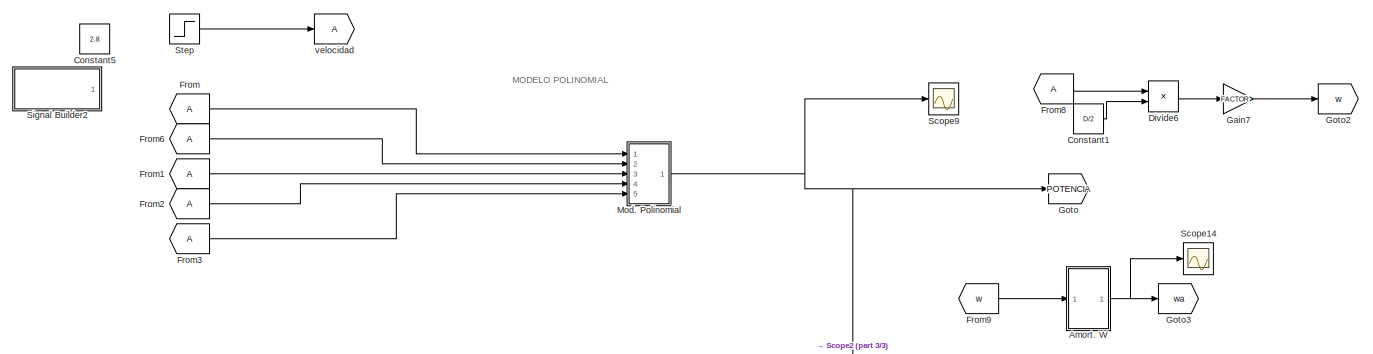
[diagram: root canvas - part 1/3, top center region]
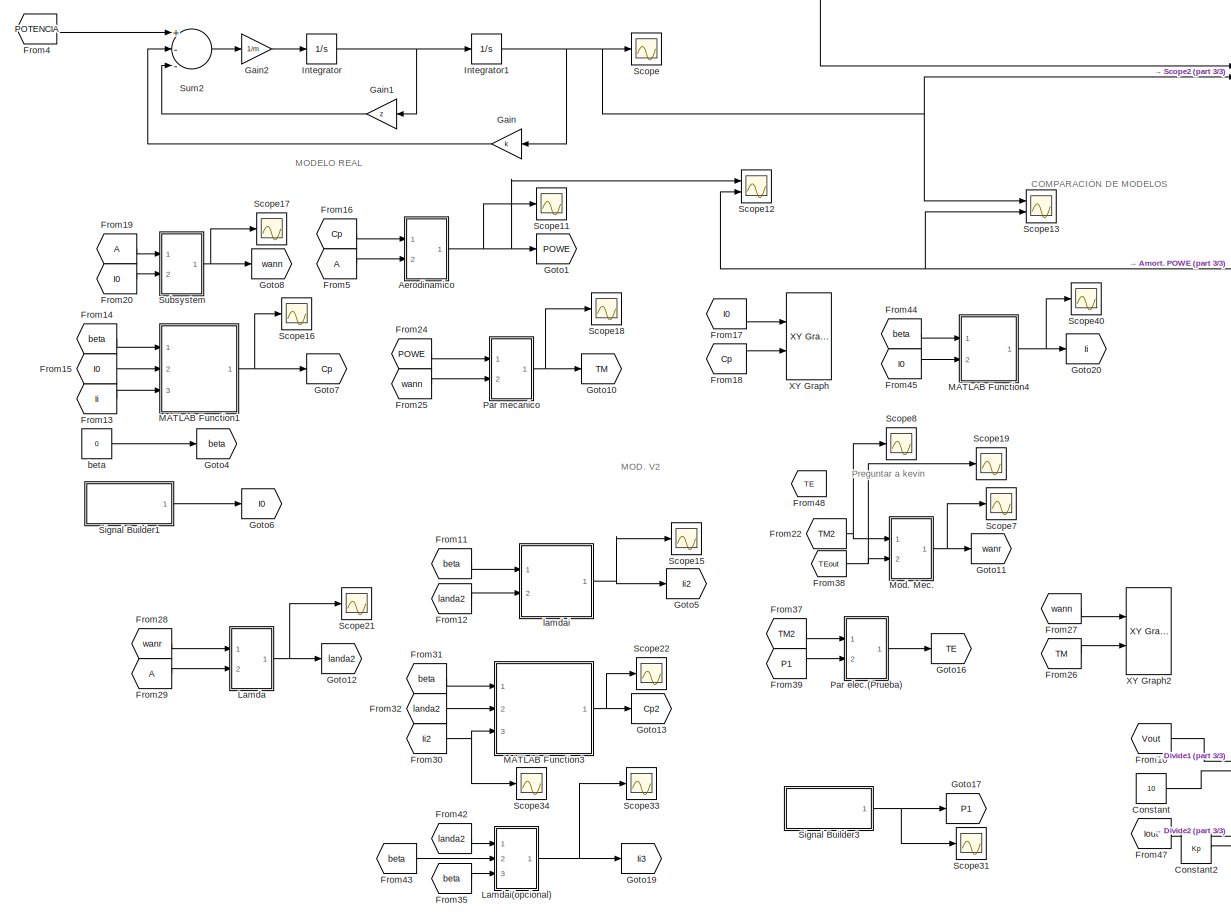
[diagram: root canvas - part 2/3, middle left region]
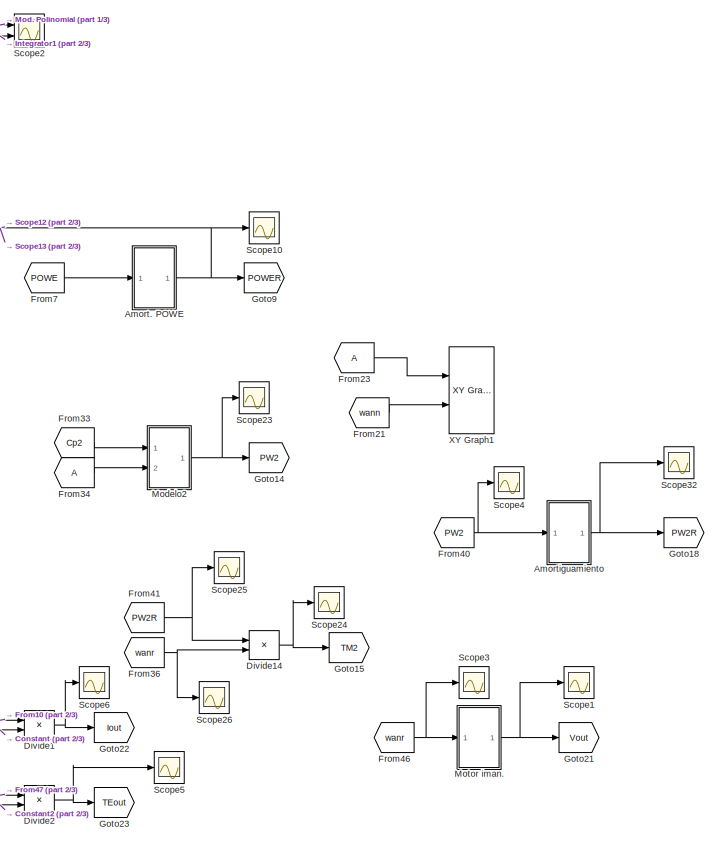
[diagram: root canvas - part 3/3, middle right region]
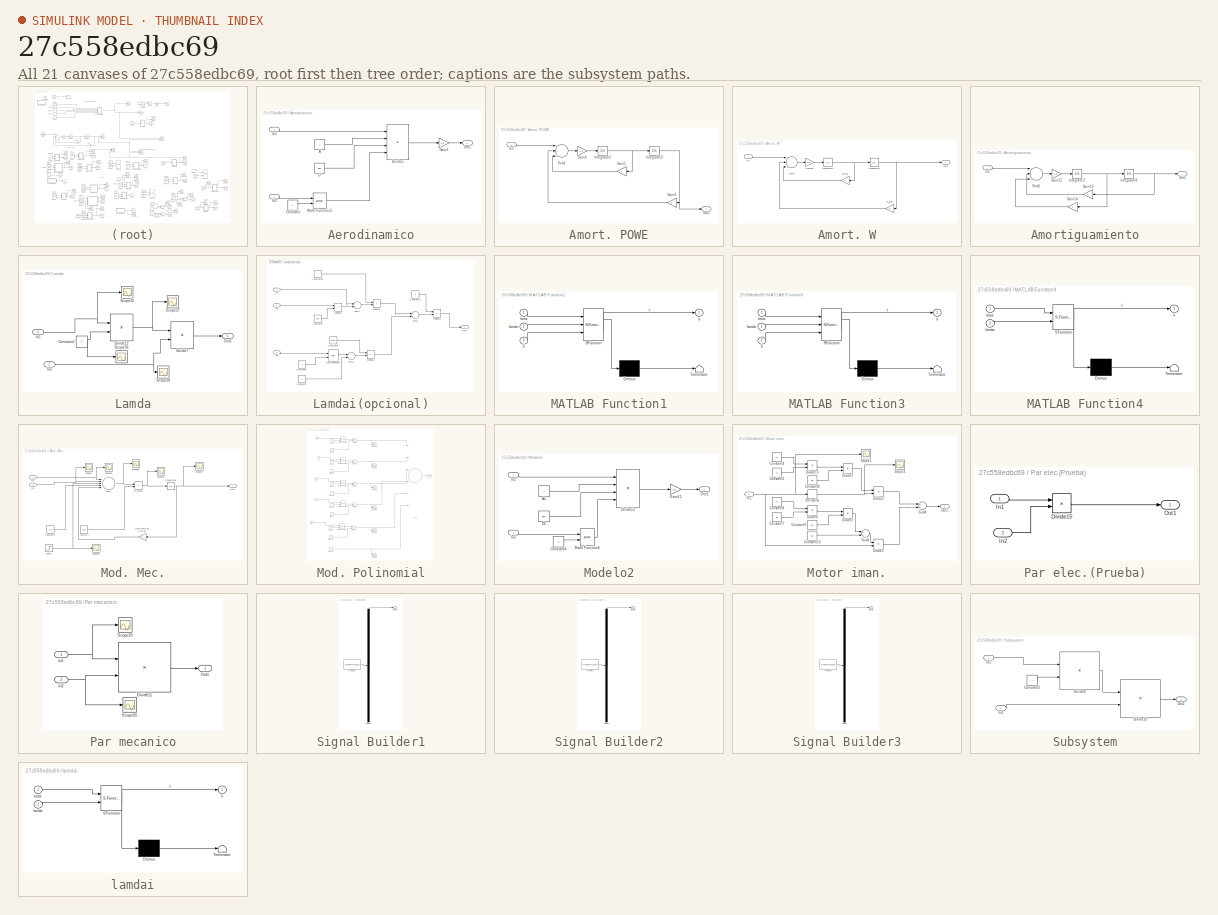
[diagram: thumbnail index - all 21 canvases of the model, root first then tree order]
MODEL slx_27c558edbc69
KIND model
CONFIG AbsTol = auto
CONFIG EnableMultiTasking = off
CONFIG FixedStep = 50e-3
CONFIG MaxStep = auto
CONFIG MinStep = auto
CONFIG RelTol = 1e-3
CONFIG SampleTimeConstraint = Unconstrained
CONFIG Solver = FixedStepAuto
CONFIG SolverName = FixedStepAuto
CONFIG StartTime = 0.0
CONFIG StopTime = 500
BLOCK [SubSystem] Aerodinamico
  Ports = [2, 1]
  RequestExecContextInheritance = off
  Variant = off
BLOCK [Constant] Aerodinamico/A
  Value = A
BLOCK [Constant] Aerodinamico/Constant
  Value = 3
BLOCK [Constant] Aerodinamico/D
  Value = den
BLOCK [Product] Aerodinamico/Divide5
  InputSameDT = off
  Inputs = ****
  OutDataTypeStr = Inherit: Inherit via internal rule
  Ports = [4, 1]
BLOCK [Gain] Aerodinamico/Gain3
  Gain = 0.5
  OutDataTypeStr = Inherit: Inherit via internal rule
  ParamDataTypeStr = Inherit: Inherit via internal rule
  SaturateOnIntegerOverflow = off
BLOCK [Inport] Aerodinamico/In1
  IconDisplay = Port number
BLOCK [Inport] Aerodinamico/In2
  IconDisplay = Port number
  Port = 2
BLOCK [Math] Aerodinamico/Math Function5
  Operator = pow
  Ports = [2, 1]
BLOCK [Outport] Aerodinamico/Out1
  IconDisplay = Port number
BLOCK [SubSystem] Amort. POWE
  Ports = [1, 1]
  RequestExecContextInheritance = off
  Variant = off
BLOCK [Gain] Amort. POWE/Gain4
  Gain = k
  OutDataTypeStr = Inherit: Inherit via internal rule
  ParamDataTypeStr = Inherit: Inherit via internal rule
  SaturateOnIntegerOverflow = off
BLOCK [Gain] Amort. POWE/Gain5
  Gain = z
  OutDataTypeStr = Inherit: Inherit via internal rule
  ParamDataTypeStr = Inherit: Inherit via internal rule
  SaturateOnIntegerOverflow = off
BLOCK [Gain] Amort. POWE/Gain6
  Gain = 1/m
  OutDataTypeStr = Inherit: Inherit via internal rule
  ParamDataTypeStr = Inherit: Inherit via internal rule
  SaturateOnIntegerOverflow = off
BLOCK [Inport] Amort. POWE/In1
  IconDisplay = Port number
BLOCK [Integrator] Amort. POWE/Integrator2
  Ports = [1, 1]
BLOCK [Integrator] Amort. POWE/Integrator3
  Ports = [1, 1]
BLOCK [Outport] Amort. POWE/Out1
  IconDisplay = Port number
BLOCK [Sum] Amort. POWE/Sum1
  InputSameDT = off
  Inputs = +--
  OutDataTypeStr = Inherit: Inherit via internal rule
  Ports = [3, 1]
  SaturateOnIntegerOverflow = off
BLOCK [SubSystem] Amort. W
  Ports = [1, 1]
  RequestExecContextInheritance = off
  Variant = off
BLOCK [Gain] Amort. W/Gain10
  Gain = 1/m
  OutDataTypeStr = Inherit: Inherit via internal rule
  ParamDataTypeStr = Inherit: Inherit via internal rule
  SaturateOnIntegerOverflow = off
BLOCK [Gain] Amort. W/Gain8
  Gain = k
  OutDataTypeStr = Inherit: Inherit via internal rule
  ParamDataTypeStr = Inherit: Inherit via internal rule
  SaturateOnIntegerOverflow = off
BLOCK [Gain] Amort. W/Gain9
  Gain = z
  OutDataTypeStr = Inherit: Inherit via internal rule
  ParamDataTypeStr = Inherit: Inherit via internal rule
  SaturateOnIntegerOverflow = off
BLOCK [Inport] Amort. W/In1
  IconDisplay = Port number
BLOCK [Integrator] Amort. W/Integrator4
  Ports = [1, 1]
BLOCK [Integrator] Amort. W/Integrator5
  Ports = [1, 1]
BLOCK [Outport] Amort. W/Out1
  IconDisplay = Port number
BLOCK [Sum] Amort. W/Sum3
  InputSameDT = off
  Inputs = +--
  OutDataTypeStr = Inherit: Inherit via internal rule
  Ports = [3, 1]
  SaturateOnIntegerOverflow = off
BLOCK [SubSystem] Amortiguamiento
  Ports = [1, 1]
  RequestExecContextInheritance = off
  Variant = off
BLOCK [Gain] Amortiguamiento/Gain12
  Gain = 1/m
  OutDataTypeStr = Inherit: Inherit via internal rule
  ParamDataTypeStr = Inherit: Inherit via internal rule
  SaturateOnIntegerOverflow = off
BLOCK [Gain] Amortiguamiento/Gain13
  Gain = k
  OutDataTypeStr = Inherit: Inherit via internal rule
  ParamDataTypeStr = Inherit: Inherit via internal rule
  SaturateOnIntegerOverflow = off
BLOCK [Gain] Amortiguamiento/Gain14
  Gain = z
  OutDataTypeStr = Inherit: Inherit via internal rule
  ParamDataTypeStr = Inherit: Inherit via internal rule
  SaturateOnIntegerOverflow = off
BLOCK [Inport] Amortiguamiento/In1
  IconDisplay = Port number
BLOCK [Integrator] Amortiguamiento/Integrator7
  Ports = [1, 1]
BLOCK [Integrator] Amortiguamiento/Integrator8
  Ports = [1, 1]
BLOCK [Outport] Amortiguamiento/Out1
  IconDisplay = Port number
BLOCK [Sum] Amortiguamiento/Sum5
  InputSameDT = off
  Inputs = +--
  OutDataTypeStr = Inherit: Inherit via internal rule
  Ports = [3, 1]
  SaturateOnIntegerOverflow = off
BLOCK [Constant] Constant
  Value = 10
BLOCK [Constant] Constant1
  Value = D/2
BLOCK [Constant] Constant2
  Value = Kp
BLOCK [Constant] Constant5
  Value = 2.8
BLOCK [Product] Divide1
  InputSameDT = off
  Inputs = */
  OutDataTypeStr = Inherit: Inherit via internal rule
  Ports = [2, 1]
  RndMeth = Floor
  SaturateOnIntegerOverflow = off
BLOCK [Product] Divide14
  InputSameDT = off
  Inputs = */
  OutDataTypeStr = Inherit: Inherit via internal rule
  Ports = [2, 1]
  RndMeth = Floor
  SaturateOnIntegerOverflow = off
BLOCK [Product] Divide2
  InputSameDT = off
  Inputs = **
  OutDataTypeStr = Inherit: Inherit via internal rule
  Ports = [2, 1]
  RndMeth = Floor
  SaturateOnIntegerOverflow = off
BLOCK [Product] Divide6
  InputSameDT = off
  Inputs = */
  OutDataTypeStr = Inherit: Inherit via internal rule
  Ports = [2, 1]
  RndMeth = Floor
  SaturateOnIntegerOverflow = off
BLOCK [From] From
BLOCK [From] From1
BLOCK [From] From10
  GotoTag = Vout
BLOCK [From] From11
  GotoTag = beta
BLOCK [From] From12
  GotoTag = landa2
BLOCK [From] From13
  GotoTag = Ii
BLOCK [From] From14
  GotoTag = beta
BLOCK [From] From15
  GotoTag = I0
BLOCK [From] From16
  GotoTag = Cp
BLOCK [From] From17
  GotoTag = I0
BLOCK [From] From18
  GotoTag = Cp
BLOCK [From] From19
BLOCK [From] From2
BLOCK [From] From20
  GotoTag = I0
BLOCK [From] From21
  GotoTag = wann
BLOCK [From] From22
  GotoTag = TM2
BLOCK [From] From23
BLOCK [From] From24
  GotoTag = POWE
BLOCK [From] From25
  GotoTag = wann
BLOCK [From] From26
  GotoTag = TM
BLOCK [From] From27
  GotoTag = wann
BLOCK [From] From28
  GotoTag = wanr
BLOCK [From] From29
BLOCK [From] From3
BLOCK [From] From30
  GotoTag = Ii2
BLOCK [From] From31
  GotoTag = beta
BLOCK [From] From32
  GotoTag = landa2
BLOCK [From] From33
  GotoTag = Cp2
BLOCK [From] From34
BLOCK [From] From35
  GotoTag = beta
BLOCK [From] From36
  GotoTag = wanr
BLOCK [From] From37
  GotoTag = TM2
BLOCK [From] From38
  GotoTag = TEout
BLOCK [From] From39
  GotoTag = P1
BLOCK [From] From4
  GotoTag = POTENCIA
BLOCK [From] From40
  GotoTag = PW2
BLOCK [From] From41
  GotoTag = PW2R
BLOCK [From] From42
  GotoTag = landa2
BLOCK [From] From43
  GotoTag = beta
BLOCK [From] From44
  GotoTag = beta
BLOCK [From] From45
  GotoTag = I0
BLOCK [From] From46
  GotoTag = wanr
BLOCK [From] From47
  GotoTag = Iout
BLOCK [From] From48
  GotoTag = TE
BLOCK [From] From5
BLOCK [From] From6
BLOCK [From] From7
  GotoTag = POWE
BLOCK [From] From8
BLOCK [From] From9
  GotoTag = w
BLOCK [Gain] Gain
  Gain = k
  OutDataTypeStr = Inherit: Inherit via internal rule
  ParamDataTypeStr = Inherit: Inherit via internal rule
  SaturateOnIntegerOverflow = off
BLOCK [Gain] Gain1
  Gain = z
  OutDataTypeStr = Inherit: Inherit via internal rule
  ParamDataTypeStr = Inherit: Inherit via internal rule
  SaturateOnIntegerOverflow = off
BLOCK [Gain] Gain2
  Gain = 1/m
  OutDataTypeStr = Inherit: Inherit via internal rule
  ParamDataTypeStr = Inherit: Inherit via internal rule
  SaturateOnIntegerOverflow = off
BLOCK [Gain] Gain7
  Gain = FACTOR
  OutDataTypeStr = Inherit: Inherit via internal rule
  ParamDataTypeStr = Inherit: Inherit via internal rule
  SaturateOnIntegerOverflow = off
BLOCK [Goto] Goto
  GotoTag = POTENCIA
BLOCK [Goto] Goto1
  GotoTag = POWE
BLOCK [Goto] Goto10
  GotoTag = TM
BLOCK [Goto] Goto11
  GotoTag = wanr
BLOCK [Goto] Goto12
  GotoTag = landa2
BLOCK [Goto] Goto13
  GotoTag = Cp2
BLOCK [Goto] Goto14
  GotoTag = PW2
BLOCK [Goto] Goto15
  GotoTag = TM2
BLOCK [Goto] Goto16
  GotoTag = TE
BLOCK [Goto] Goto17
  GotoTag = P1
BLOCK [Goto] Goto18
  GotoTag = PW2R
BLOCK [Goto] Goto19
  GotoTag = Ii3
BLOCK [Goto] Goto2
  GotoTag = w
BLOCK [Goto] Goto20
  GotoTag = Ii
BLOCK [Goto] Goto21
  GotoTag = Vout
BLOCK [Goto] Goto22
  GotoTag = Iout
BLOCK [Goto] Goto23
  GotoTag = TEout
BLOCK [Goto] Goto3
  GotoTag = wa
BLOCK [Goto] Goto4
  GotoTag = beta
BLOCK [Goto] Goto5
  GotoTag = Ii2
BLOCK [Goto] Goto6
  GotoTag = I0
BLOCK [Goto] Goto7
  GotoTag = Cp
BLOCK [Goto] Goto8
  GotoTag = wann
BLOCK [Goto] Goto9
  GotoTag = POWER
BLOCK [Integrator] Integrator
  Ports = [1, 1]
BLOCK [Integrator] Integrator1
  Ports = [1, 1]
BLOCK [SubSystem] Lamda
  Ports = [2, 1]
  RequestExecContextInheritance = off
  Variant = off
BLOCK [Constant] Lamda/Constant4
  Value = r
BLOCK [Product] Lamda/Divide12
  InputSameDT = off
  Inputs = **
  OutDataTypeStr = Inherit: Inherit via internal rule
  Ports = [2, 1]
  RndMeth = Floor
  SaturateOnIntegerOverflow = off
BLOCK [Product] Lamda/Divide7
  InputSameDT = off
  Inputs = */
  OutDataTypeStr = Inherit: Inherit via internal rule
  Ports = [2, 1]
  RndMeth = Floor
  SaturateOnIntegerOverflow = off
BLOCK [Inport] Lamda/In1
  IconDisplay = Port number
BLOCK [Inport] Lamda/In2
  IconDisplay = Port number
  Port = 2
BLOCK [Outport] Lamda/Out1
  IconDisplay = Port number
BLOCK [Scope] Lamda/Scope35
  NumInputPorts = 1
  Ports = [1]
  ScopeSpecificationString = Simulink.scopes.TimeScopeBlockCfg('CurrentConfiguration', extmgr.ConfigurationSet(extmgr.Configuration('Core','General UI',true),extmgr.Configuration('Core','Source UI',true),extmgr.Configuration('Sources','WiredSimulink',true,'DataLoggingVariableName','ScopeData3'),extmgr.Configuration('Visuals','Time Domain',true,'SerializedDisplays',{struct('MinYLimReal','-121.99794','MaxYLimReal','1197.9815','...<+1384ch>
BLOCK [Scope] Lamda/Scope36
  NumInputPorts = 1
  Ports = [1]
  ScopeSpecificationString = Simulink.scopes.TimeScopeBlockCfg('CurrentConfiguration', extmgr.ConfigurationSet(extmgr.Configuration('Core','General UI',true),extmgr.Configuration('Core','Source UI',true),extmgr.Configuration('Sources','WiredSimulink',true,'DataLoggingVariableName','ScopeData4'),extmgr.Configuration('Visuals','Time Domain',true,'SerializedDisplays',{struct('MinYLimReal','0.4','MaxYLimReal','0.6','YLabelReal','...<+1363ch>
BLOCK [Scope] Lamda/Scope37
  NumInputPorts = 1
  Ports = [1]
  ScopeSpecificationString = Simulink.scopes.TimeScopeBlockCfg('CurrentConfiguration', extmgr.ConfigurationSet(extmgr.Configuration('Core','General UI',true),extmgr.Configuration('Core','Source UI',true),extmgr.Configuration('Sources','WiredSimulink',true,'DataLoggingVariableName','ScopeData5'),extmgr.Configuration('Visuals','Time Domain',true,'SerializedDisplays',{struct('MinYLimReal','-2.43996','MaxYLimReal','23.95963','YLa...<+1396ch>
BLOCK [Scope] Lamda/Scope38
  NumInputPorts = 1
  Ports = [1]
  ScopeSpecificationString = Simulink.scopes.TimeScopeBlockCfg('CurrentConfiguration', extmgr.ConfigurationSet(extmgr.Configuration('Core','General UI',true),extmgr.Configuration('Core','Source UI',true),extmgr.Configuration('Sources','WiredSimulink',true,'DataLoggingVariableName','ScopeData6'),extmgr.Configuration('Visuals','Time Domain',true,'SerializedDisplays',{struct('MinYLimReal','2.4515','MaxYLimReal','2.9365','YLabelR...<+1353ch>
BLOCK [SubSystem] Lamdai(opcional)
  Ports = [3, 1]
  RequestExecContextInheritance = off
  Variant = off
BLOCK [Constant] Lamdai(opcional)/Constant10
BLOCK [Constant] Lamdai(opcional)/Constant11
BLOCK [Constant] Lamdai(opcional)/Constant6
  Value = 3
BLOCK [Constant] Lamdai(opcional)/Constant7
BLOCK [Constant] Lamdai(opcional)/Constant8
  Value = 0.035
BLOCK [Constant] Lamdai(opcional)/Constant9
  Value = 0.08
BLOCK [Product] Lamdai(opcional)/Divide16
  InputSameDT = off
  Inputs = */
  OutDataTypeStr = Inherit: Inherit via internal rule
  Ports = [2, 1]
BLOCK [Product] Lamdai(opcional)/Divide17
  InputSameDT = off
  Inputs = **
  OutDataTypeStr = Inherit: Inherit via internal rule
  Ports = [2, 1]
BLOCK [Product] Lamdai(opcional)/Divide18
  InputSameDT = off
  Inputs = */
  OutDataTypeStr = Inherit: Inherit via internal rule
  Ports = [2, 1]
BLOCK [Product] Lamdai(opcional)/Divide19
  InputSameDT = off
  Inputs = */
  OutDataTypeStr = Inherit: Inherit via internal rule
  Ports = [2, 1]
BLOCK [Inport] Lamdai(opcional)/In1
  IconDisplay = Port number
BLOCK [Inport] Lamdai(opcional)/In2
  IconDisplay = Port number
  Port = 2
BLOCK [Inport] Lamdai(opcional)/In3
  IconDisplay = Port number
  Port = 3
BLOCK [Math] Lamdai(opcional)/Math Function7
  Operator = pow
  Ports = [2, 1]
BLOCK [Outport] Lamdai(opcional)/Out1
  IconDisplay = Port number
BLOCK [Sum] Lamdai(opcional)/Sum6
  InputSameDT = off
  Inputs = |++
  OutDataTypeStr = Inherit: Inherit via internal rule
  Ports = [2, 1]
  SaturateOnIntegerOverflow = off
BLOCK [Sum] Lamdai(opcional)/Sum7
  InputSameDT = off
  Inputs = |++
  OutDataTypeStr = Inherit: Inherit via internal rule
  Ports = [2, 1]
  SaturateOnIntegerOverflow = off
BLOCK [Sum] Lamdai(opcional)/Sum8
  InputSameDT = off
  Inputs = |+-
  OutDataTypeStr = Inherit: Inherit via internal rule
  Ports = [2, 1]
  SaturateOnIntegerOverflow = off
BLOCK [SubSystem] MATLAB Function1
  ErrorFcn = Stateflow.Translate.translate
  PermitHierarchicalResolution = ExplicitOnly
  Ports = [3, 1]
  RequestExecContextInheritance = off
  SFBlockType = MATLAB Function
  TreatAsAtomicUnit = on
  Variant = off
BLOCK [Demux] MATLAB Function1/ Demux 
  Outputs = 1
  Ports = [1, 1]
BLOCK [S-Function] MATLAB Function1/ SFunction 
  EnableBusSupport = on
  FunctionName = sf_sfun
  PortCounts = [3 2]
  Ports = [3, 2]
  SFcnIsStateOwnerBlock = off
  SFunctionDeploymentMode = off
  Tag = Stateflow S-Function MODELODETURBINADERIO2017a 1
BLOCK [Terminator] MATLAB Function1/ Terminator 
BLOCK [Inport] MATLAB Function1/Ii
  IconDisplay = Port number
  Port = 3
BLOCK [Inport] MATLAB Function1/beta
  IconDisplay = Port number
BLOCK [Inport] MATLAB Function1/landa
  IconDisplay = Port number
  Port = 2
BLOCK [Outport] MATLAB Function1/y
  IconDisplay = Port number
BLOCK [SubSystem] MATLAB Function3
  ErrorFcn = Stateflow.Translate.translate
  PermitHierarchicalResolution = ExplicitOnly
  Ports = [3, 1]
  RequestExecContextInheritance = off
  SFBlockType = MATLAB Function
  TreatAsAtomicUnit = on
  Variant = off
BLOCK [Demux] MATLAB Function3/ Demux 
  Outputs = 1
  Ports = [1, 1]
BLOCK [S-Function] MATLAB Function3/ SFunction 
  EnableBusSupport = on
  FunctionName = sf_sfun
  PortCounts = [3 2]
  Ports = [3, 2]
  SFcnIsStateOwnerBlock = off
  SFunctionDeploymentMode = off
  Tag = Stateflow S-Function MODELODETURBINADERIO2017a 2
BLOCK [Terminator] MATLAB Function3/ Terminator 
BLOCK [Inport] MATLAB Function3/Ii
  IconDisplay = Port number
  Port = 3
BLOCK [Inport] MATLAB Function3/beta
  IconDisplay = Port number
BLOCK [Inport] MATLAB Function3/landa
  IconDisplay = Port number
  Port = 2
BLOCK [Outport] MATLAB Function3/y
  IconDisplay = Port number
BLOCK [SubSystem] MATLAB Function4
  ErrorFcn = Stateflow.Translate.translate
  PermitHierarchicalResolution = ExplicitOnly
  Ports = [2, 1]
  RequestExecContextInheritance = off
  SFBlockType = MATLAB Function
  TreatAsAtomicUnit = on
  Variant = off
BLOCK [Demux] MATLAB Function4/ Demux 
  Outputs = 1
  Ports = [1, 1]
BLOCK [S-Function] MATLAB Function4/ SFunction 
  EnableBusSupport = on
  FunctionName = sf_sfun
  PortCounts = [2 2]
  Ports = [2, 2]
  SFcnIsStateOwnerBlock = off
  SFunctionDeploymentMode = off
  Tag = Stateflow S-Function MODELODETURBINADERIO2017a 4
BLOCK [Terminator] MATLAB Function4/ Terminator 
BLOCK [Outport] MATLAB Function4/Ii
  IconDisplay = Port number
BLOCK [Inport] MATLAB Function4/beta
  IconDisplay = Port number
BLOCK [Inport] MATLAB Function4/landa
  IconDisplay = Port number
  Port = 2
BLOCK [SubSystem] Mod. Mec.
  Ports = [2, 1]
  RequestExecContextInheritance = off
  Variant = off
BLOCK [Constant] Mod. Mec./Constant3
  Value = T_d
BLOCK [Product] Mod. Mec./Divide9
  InputSameDT = off
  Inputs = */
  OutDataTypeStr = Inherit: Inherit via internal rule
  Ports = [2, 1]
  RndMeth = Floor
  SaturateOnIntegerOverflow = off
BLOCK [Inport] Mod. Mec./In1
  IconDisplay = Port number
BLOCK [Inport] Mod. Mec./In2
  IconDisplay = Port number
  Port = 2
BLOCK [Integrator] Mod. Mec./Integrator6
  InitialCondition = 10
  Ports = [1, 1]
BLOCK [Gain] Mod. Mec./Oeficiente de friccion
  Gain = B
  OutDataTypeStr = Inherit: Inherit via internal rule
  ParamDataTypeStr = Inherit: Inherit via internal rule
  SaturateOnIntegerOverflow = off
BLOCK [Outport] Mod. Mec./Out1
  IconDisplay = Port number
BLOCK [Scope] Mod. Mec./Scope1
  NumInputPorts = 1
  Ports = [1]
  ScopeSpecificationString = Simulink.scopes.TimeScopeBlockCfg('CurrentConfiguration', extmgr.ConfigurationSet(extmgr.Configuration('Core','General UI',true),extmgr.Configuration('Core','Source UI',true),extmgr.Configuration('Sources','WiredSimulink',true,'DataLoggingVariableName','ScopeData3'),extmgr.Configuration('Visuals','Time Domain',true,'SerializedDisplays',{struct('MinYLimReal','0.15659','MaxYLimReal','7.16293','YLabe...<+1414ch>
BLOCK [Scope] Mod. Mec./Scope27
  NumInputPorts = 1
  Ports = [1]
  ScopeSpecificationString = Simulink.scopes.TimeScopeBlockCfg('CurrentConfiguration', extmgr.ConfigurationSet(extmgr.Configuration('Core','General UI',true),extmgr.Configuration('Core','Source UI',true),extmgr.Configuration('Sources','WiredSimulink',true,'DataLoggingVariableName','ScopeData11'),extmgr.Configuration('Visuals','Time Domain',true,'SerializedDisplays',{struct('MinYLimReal','1.57536','MaxYLimReal','85.82174','YLa...<+1444ch>
BLOCK [Scope] Mod. Mec./Scope28
  NumInputPorts = 1
  Ports = [1]
  ScopeSpecificationString = Simulink.scopes.TimeScopeBlockCfg('CurrentConfiguration', extmgr.ConfigurationSet(extmgr.Configuration('Core','General UI',true),extmgr.Configuration('Core','Source UI',true),extmgr.Configuration('Sources','WiredSimulink',true,'DataLoggingVariableName','ScopeData12'),extmgr.Configuration('Visuals','Time Domain',true,'SerializedDisplays',{struct('MinYLimReal','-9.17288','MaxYLimReal','82.6118','YLa...<+1364ch>
BLOCK [Scope] Mod. Mec./Scope29
  NumInputPorts = 1
  Ports = [1]
  ScopeSpecificationString = Simulink.scopes.TimeScopeBlockCfg('CurrentConfiguration', extmgr.ConfigurationSet(extmgr.Configuration('Core','General UI',true),extmgr.Configuration('Core','Source UI',true),extmgr.Configuration('Sources','WiredSimulink',true,'DataLoggingVariableName','ScopeData13'),extmgr.Configuration('Visuals','Time Domain',true,'SerializedDisplays',{struct('MinYLimReal','-9.56493','MaxYLimReal','86.08441','YL...<+1421ch>
BLOCK [Scope] Mod. Mec./Scope30
  NumInputPorts = 1
  Ports = [1]
  ScopeSpecificationString = Simulink.scopes.TimeScopeBlockCfg('CurrentConfiguration', extmgr.ConfigurationSet(extmgr.Configuration('Core','General UI',true),extmgr.Configuration('Core','Source UI',true),extmgr.Configuration('Sources','WiredSimulink',true,'DataLoggingVariableName','ScopeData14'),extmgr.Configuration('Visuals','Time Domain',true,'SerializedDisplays',{struct('MinYLimReal','-0.09173','MaxYLimReal','0.82612','YLa...<+1367ch>
BLOCK [Scope] Mod. Mec./Scope39
  NumInputPorts = 1
  Ports = [1]
  ScopeSpecificationString = Simulink.scopes.TimeScopeBlockCfg('CurrentConfiguration', extmgr.ConfigurationSet(extmgr.Configuration('Core','General UI',true),extmgr.Configuration('Core','Source UI',true),extmgr.Configuration('Sources','WiredSimulink',true,'DataLoggingVariableName','ScopeData7'),extmgr.Configuration('Visuals','Time Domain',true,'SerializedDisplays',{struct('MinYLimReal','-0.625','MaxYLimReal','5.625','YLabelRe...<+1406ch>
BLOCK [Step] Mod. Mec./Step1
  After = 0
  Before = 5
  SampleTime = 0
  Time = 3
BLOCK [Sum] Mod. Mec./Sum4
  InputSameDT = off
  Inputs = |+-+--
  OutDataTypeStr = Inherit: Inherit via internal rule
  Ports = [5, 1]
  SaturateOnIntegerOverflow = off
BLOCK [Constant] Mod. Mec./inercia J
  Value = 100
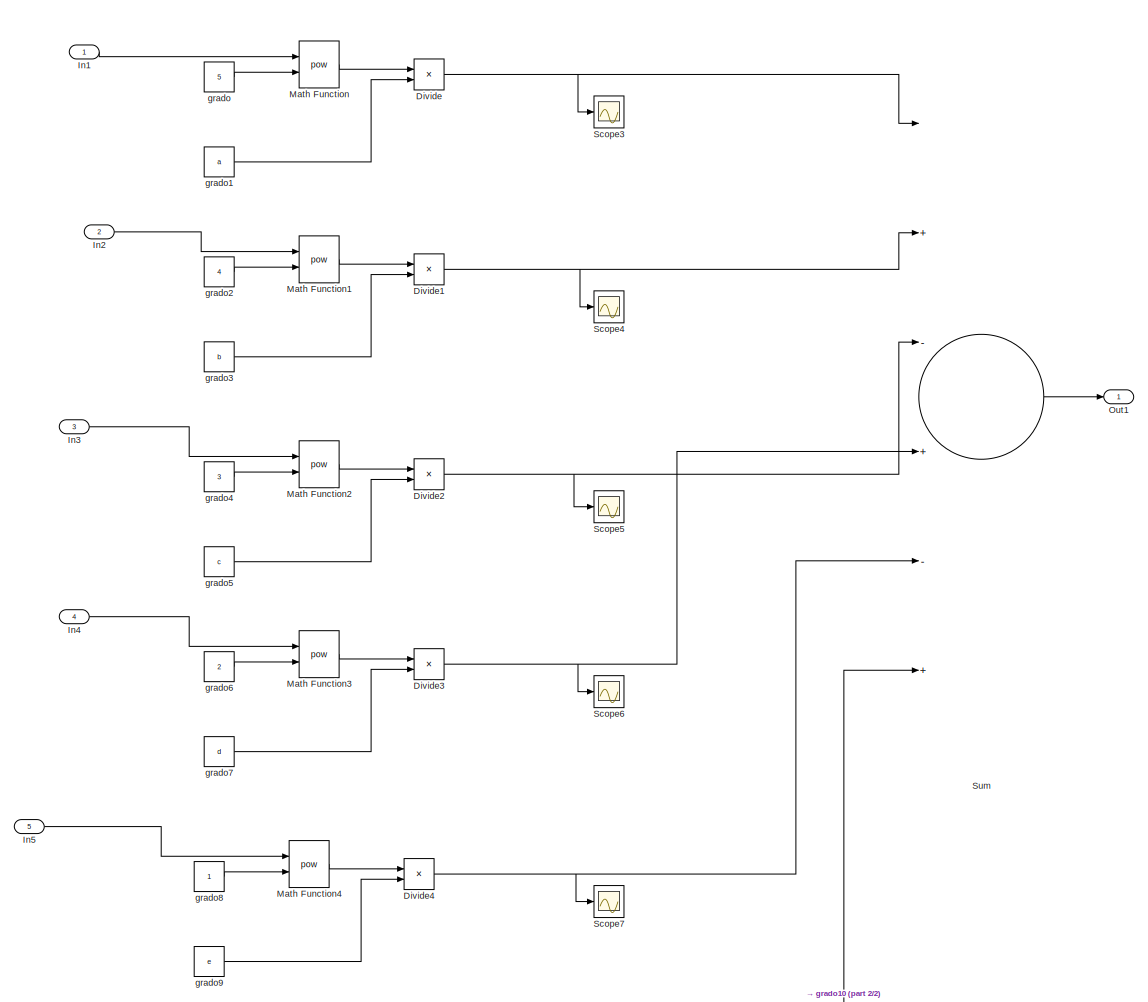
[diagram: Mod. Polinomial - part 1/2, most of the canvas]
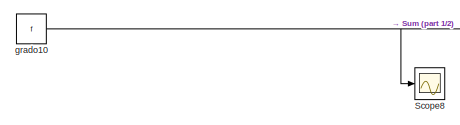
[diagram: Mod. Polinomial - part 2/2, bottom center region]
BLOCK [SubSystem] Mod. Polinomial
  Ports = [5, 1]
  RequestExecContextInheritance = off
  Variant = off
BLOCK [Product] Mod. Polinomial/Divide
  InputSameDT = off
  Inputs = **
  OutDataTypeStr = Inherit: Inherit via internal rule
  Ports = [2, 1]
  RndMeth = Floor
  SaturateOnIntegerOverflow = off
BLOCK [Product] Mod. Polinomial/Divide1
  InputSameDT = off
  Inputs = **
  OutDataTypeStr = Inherit: Inherit via internal rule
  Ports = [2, 1]
  RndMeth = Floor
  SaturateOnIntegerOverflow = off
BLOCK [Product] Mod. Polinomial/Divide2
  InputSameDT = off
  Inputs = **
  OutDataTypeStr = Inherit: Inherit via internal rule
  Ports = [2, 1]
  RndMeth = Floor
  SaturateOnIntegerOverflow = off
BLOCK [Product] Mod. Polinomial/Divide3
  InputSameDT = off
  Inputs = **
  OutDataTypeStr = Inherit: Inherit via internal rule
  Ports = [2, 1]
  RndMeth = Floor
  SaturateOnIntegerOverflow = off
BLOCK [Product] Mod. Polinomial/Divide4
  InputSameDT = off
  Inputs = **
  OutDataTypeStr = Inherit: Inherit via internal rule
  Ports = [2, 1]
  RndMeth = Floor
  SaturateOnIntegerOverflow = off
BLOCK [Inport] Mod. Polinomial/In1
  IconDisplay = Port number
BLOCK [Inport] Mod. Polinomial/In2
  IconDisplay = Port number
  Port = 2
BLOCK [Inport] Mod. Polinomial/In3
  IconDisplay = Port number
  Port = 3
BLOCK [Inport] Mod. Polinomial/In4
  IconDisplay = Port number
  Port = 4
BLOCK [Inport] Mod. Polinomial/In5
  IconDisplay = Port number
  Port = 5
BLOCK [Math] Mod. Polinomial/Math Function
  Operator = pow
  Ports = [2, 1]
BLOCK [Math] Mod. Polinomial/Math Function1
  Operator = pow
  Ports = [2, 1]
BLOCK [Math] Mod. Polinomial/Math Function2
  Operator = pow
  Ports = [2, 1]
BLOCK [Math] Mod. Polinomial/Math Function3
  Operator = pow
  Ports = [2, 1]
BLOCK [Math] Mod. Polinomial/Math Function4
  Operator = pow
  Ports = [2, 1]
BLOCK [Outport] Mod. Polinomial/Out1
  IconDisplay = Port number
BLOCK [Scope] Mod. Polinomial/Scope3
  NumInputPorts = 1
  Ports = [1]
  ScopeSpecificationString = Simulink.scopes.TimeScopeBlockCfg('CurrentConfiguration', extmgr.ConfigurationSet(extmgr.Configuration('Core','General UI',true),extmgr.Configuration('Core','Source UI',true),extmgr.Configuration('Sources','WiredSimulink',true,'DataLoggingVariableName','ScopeData3'),extmgr.Configuration('Visuals','Time Domain',true,'SerializedDisplays',{struct('MinYLimReal','72669.32937','MaxYLimReal','117958.4575...<+1399ch>
BLOCK [Scope] Mod. Polinomial/Scope4
  NumInputPorts = 1
  Ports = [1]
  ScopeSpecificationString = Simulink.scopes.TimeScopeBlockCfg('CurrentConfiguration', extmgr.ConfigurationSet(extmgr.Configuration('Core','General UI',true),extmgr.Configuration('Core','Source UI',true),extmgr.Configuration('Sources','WiredSimulink',true,'DataLoggingVariableName','ScopeData4'),extmgr.Configuration('Visuals','Time Domain',true,'SerializedDisplays',{struct('MinYLimReal','257404.52115','MaxYLimReal','378867.122...<+1404ch>
BLOCK [Scope] Mod. Polinomial/Scope5
  NumInputPorts = 1
  Ports = [1]
  ScopeSpecificationString = Simulink.scopes.TimeScopeBlockCfg('CurrentConfiguration', extmgr.ConfigurationSet(extmgr.Configuration('Core','General UI',true),extmgr.Configuration('Core','Source UI',true),extmgr.Configuration('Sources','WiredSimulink',true,'DataLoggingVariableName','ScopeData5'),extmgr.Configuration('Visuals','Time Domain',true,'SerializedDisplays',{struct('MinYLimReal','359711.7435','MaxYLimReal','480406.8085...<+1396ch>
BLOCK [Scope] Mod. Polinomial/Scope6
  NumInputPorts = 1
  Ports = [1]
  ScopeSpecificationString = Simulink.scopes.TimeScopeBlockCfg('CurrentConfiguration', extmgr.ConfigurationSet(extmgr.Configuration('Core','General UI',true),extmgr.Configuration('Core','Source UI',true),extmgr.Configuration('Sources','WiredSimulink',true,'DataLoggingVariableName','ScopeData6'),extmgr.Configuration('Visuals','Time Domain',true,'SerializedDisplays',{struct('MinYLimReal','240320.16','MaxYLimReal','291368.56','Y...<+1380ch>
BLOCK [Scope] Mod. Polinomial/Scope7
  NumInputPorts = 1
  Ports = [1]
  ScopeSpecificationString = Simulink.scopes.TimeScopeBlockCfg('CurrentConfiguration', extmgr.ConfigurationSet(extmgr.Configuration('Core','General UI',true),extmgr.Configuration('Core','Source UI',true),extmgr.Configuration('Sources','WiredSimulink',true,'DataLoggingVariableName','ScopeData7'),extmgr.Configuration('Visuals','Time Domain',true,'SerializedDisplays',{struct('MinYLimReal','78860.925','MaxYLimReal','86826.675','Y...<+1380ch>
BLOCK [Scope] Mod. Polinomial/Scope8
  NumInputPorts = 1
  Ports = [1]
  ScopeSpecificationString = Simulink.scopes.TimeScopeBlockCfg('CurrentConfiguration', extmgr.ConfigurationSet(extmgr.Configuration('Core','General UI',true),extmgr.Configuration('Core','Source UI',true),extmgr.Configuration('Sources','WiredSimulink',true,'DataLoggingVariableName','ScopeData8'),extmgr.Configuration('Visuals','Time Domain',true),extmgr.Configuration('Tools','Plot Navigation',true),extmgr.Configuration('Tools',...<+40ch>
BLOCK [Sum] Mod. Polinomial/Sum
  InputSameDT = off
  Inputs = |+-+-+-
  OutDataTypeStr = Inherit: Inherit via internal rule
  Ports = [6, 1]
  SaturateOnIntegerOverflow = off
BLOCK [Constant] Mod. Polinomial/grado
  Value = 5
BLOCK [Constant] Mod. Polinomial/grado1
  Value = a
BLOCK [Constant] Mod. Polinomial/grado10
  Value = f
BLOCK [Constant] Mod. Polinomial/grado2
  Value = 4
BLOCK [Constant] Mod. Polinomial/grado3
  Value = b
BLOCK [Constant] Mod. Polinomial/grado4
  Value = 3
BLOCK [Constant] Mod. Polinomial/grado5
  Value = c
BLOCK [Constant] Mod. Polinomial/grado6
  Value = 2
BLOCK [Constant] Mod. Polinomial/grado7
  Value = d
BLOCK [Constant] Mod. Polinomial/grado8
BLOCK [Constant] Mod. Polinomial/grado9
  Value = e
BLOCK [SubSystem] Modelo2
  Ports = [2, 1]
  RequestExecContextInheritance = off
  Variant = off
BLOCK [Constant] Modelo2/A1
  Value = A
BLOCK [Constant] Modelo2/Constant4
  Value = 3
BLOCK [Constant] Modelo2/D1
  Value = den
BLOCK [Product] Modelo2/Divide13
  InputSameDT = off
  Inputs = ****
  OutDataTypeStr = Inherit: Inherit via internal rule
  Ports = [4, 1]
BLOCK [Gain] Modelo2/Gain11
  Gain = 0.5
  OutDataTypeStr = Inherit: Inherit via internal rule
  ParamDataTypeStr = Inherit: Inherit via internal rule
  SaturateOnIntegerOverflow = off
BLOCK [Inport] Modelo2/In1
  IconDisplay = Port number
BLOCK [Inport] Modelo2/In2
  IconDisplay = Port number
  Port = 2
BLOCK [Math] Modelo2/Math Function6
  Operator = pow
  Ports = [2, 1]
BLOCK [Outport] Modelo2/Out1
  IconDisplay = Port number
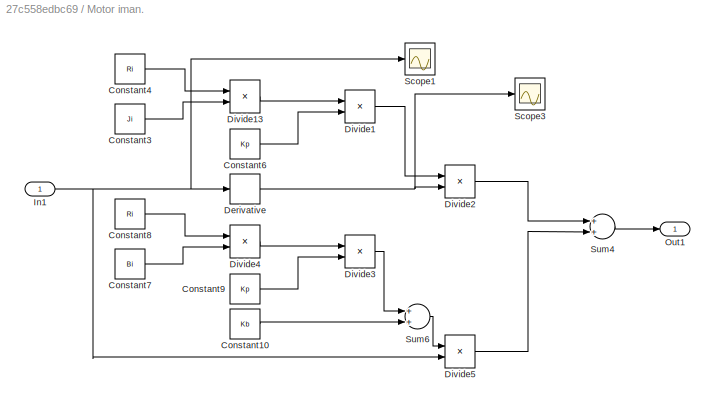
BLOCK [SubSystem] Motor iman.
  Ports = [1, 1]
  RequestExecContextInheritance = off
  Variant = off
BLOCK [Constant] Motor iman./Constant10
  Value = Kb
BLOCK [Constant] Motor iman./Constant3
  Value = Ji
BLOCK [Constant] Motor iman./Constant4
  Value = Ri
BLOCK [Constant] Motor iman./Constant6
  Value = Kp
BLOCK [Constant] Motor iman./Constant7
  Value = Bi
BLOCK [Constant] Motor iman./Constant8
  Value = Ri
BLOCK [Constant] Motor iman./Constant9
  Value = Kp
BLOCK [Derivative] Motor iman./Derivative
BLOCK [Product] Motor iman./Divide1
  InputSameDT = off
  Inputs = */
  OutDataTypeStr = Inherit: Inherit via internal rule
  Ports = [2, 1]
BLOCK [Product] Motor iman./Divide13
  InputSameDT = off
  Inputs = **
  OutDataTypeStr = Inherit: Inherit via internal rule
  Ports = [2, 1]
BLOCK [Product] Motor iman./Divide2
  InputSameDT = off
  Inputs = **
  OutDataTypeStr = Inherit: Inherit via internal rule
  Ports = [2, 1]
BLOCK [Product] Motor iman./Divide3
  InputSameDT = off
  Inputs = */
  OutDataTypeStr = Inherit: Inherit via internal rule
  Ports = [2, 1]
BLOCK [Product] Motor iman./Divide4
  InputSameDT = off
  Inputs = **
  OutDataTypeStr = Inherit: Inherit via internal rule
  Ports = [2, 1]
BLOCK [Product] Motor iman./Divide5
  InputSameDT = off
  Inputs = **
  OutDataTypeStr = Inherit: Inherit via internal rule
  Ports = [2, 1]
BLOCK [Inport] Motor iman./In1
  IconDisplay = Port number
BLOCK [Outport] Motor iman./Out1
  IconDisplay = Port number
BLOCK [Scope] Motor iman./Scope1
  NumInputPorts = 1
  Ports = [1]
  ScopeSpecificationString = Simulink.scopes.TimeScopeBlockCfg('CurrentConfiguration', extmgr.ConfigurationSet(extmgr.Configuration('Core','General UI',true),extmgr.Configuration('Core','Source UI',true),extmgr.Configuration('Sources','WiredSimulink',true,'DataLoggingVariableName','ScopeData5'),extmgr.Configuration('Visuals','Time Domain',true,'SerializedDisplays',{struct('MinYLimReal','5.48072','MaxYLimReal','50.67354','YLab...<+1364ch>
BLOCK [Scope] Motor iman./Scope3
  NumInputPorts = 1
  Ports = [1]
  ScopeSpecificationString = Simulink.scopes.TimeScopeBlockCfg('CurrentConfiguration', extmgr.ConfigurationSet(extmgr.Configuration('Core','General UI',true),extmgr.Configuration('Core','Source UI',true),extmgr.Configuration('Sources','WiredSimulink',true,'DataLoggingVariableName','ScopeData4'),extmgr.Configuration('Visuals','Time Domain',true,'SerializedDisplays',{struct('MinYLimReal','-0.12626','MaxYLimReal','1.13635','YLab...<+1369ch>
BLOCK [Sum] Motor iman./Sum4
  InputSameDT = off
  OutDataTypeStr = Inherit: Inherit via internal rule
  Ports = [2, 1]
  SaturateOnIntegerOverflow = off
BLOCK [Sum] Motor iman./Sum6
  InputSameDT = off
  OutDataTypeStr = Inherit: Inherit via internal rule
  Ports = [2, 1]
  SaturateOnIntegerOverflow = off
BLOCK [SubSystem] Par elec.(Prueba)
  Ports = [2, 1]
  RequestExecContextInheritance = off
  Variant = off
BLOCK [Product] Par elec.(Prueba)/Divide15
  InputSameDT = off
  Inputs = **
  OutDataTypeStr = Inherit: Inherit via internal rule
  Ports = [2, 1]
  RndMeth = Floor
  SaturateOnIntegerOverflow = off
BLOCK [Inport] Par elec.(Prueba)/In1
  IconDisplay = Port number
BLOCK [Inport] Par elec.(Prueba)/In2
  IconDisplay = Port number
  Port = 2
BLOCK [Outport] Par elec.(Prueba)/Out1
  IconDisplay = Port number
BLOCK [SubSystem] Par mecanico
  Ports = [2, 1]
  RequestExecContextInheritance = off
  Variant = off
BLOCK [Product] Par mecanico/Divide11
  InputSameDT = off
  Inputs = */
  OutDataTypeStr = Inherit: Inherit via internal rule
  Ports = [2, 1]
  RndMeth = Floor
  SaturateOnIntegerOverflow = off
BLOCK [Inport] Par mecanico/In1
  IconDisplay = Port number
BLOCK [Inport] Par mecanico/In2
  IconDisplay = Port number
  Port = 2
BLOCK [Outport] Par mecanico/Out1
  IconDisplay = Port number
BLOCK [Scope] Par mecanico/Scope19
  NumInputPorts = 1
  Ports = [1]
  ScopeSpecificationString = Simulink.scopes.TimeScopeBlockCfg('CurrentConfiguration', extmgr.ConfigurationSet(extmgr.Configuration('Core','General UI',true),extmgr.Configuration('Core','Source UI',true),extmgr.Configuration('Sources','WiredSimulink',true,'DataLoggingVariableName','ScopeData3'),extmgr.Configuration('Visuals','Time Domain',true,'SerializedDisplays',{struct('MinYLimReal','3443.57464','MaxYLimReal','5279.50166',...<+1386ch>
BLOCK [Scope] Par mecanico/Scope20
  NumInputPorts = 1
  Ports = [1]
  ScopeSpecificationString = Simulink.scopes.TimeScopeBlockCfg('CurrentConfiguration', extmgr.ConfigurationSet(extmgr.Configuration('Core','General UI',true),extmgr.Configuration('Core','Source UI',true),extmgr.Configuration('Sources','WiredSimulink',true,'DataLoggingVariableName','ScopeData4'),extmgr.Configuration('Visuals','Time Domain',true),extmgr.Configuration('Tools','Plot Navigation',true),extmgr.Configuration('Tools',...<+40ch>
BLOCK [Scope] Scope
  NumInputPorts = 1
  Ports = [1]
  ScopeSpecificationString = Simulink.scopes.TimeScopeBlockCfg('CurrentConfiguration', extmgr.ConfigurationSet(extmgr.Configuration('Core','General UI',true),extmgr.Configuration('Core','Source UI',true),extmgr.Configuration('Sources','WiredSimulink',true),extmgr.Configuration('Visuals','Time Domain',true,'SerializedDisplays',{struct('MinYLimReal','-856.7741','MaxYLimReal','7710.96689','YLabelReal','','MinYLimMag',' 0.00000',...<+1445ch>
BLOCK [Scope] Scope1
  NumInputPorts = 1
  Ports = [1]
  ScopeSpecificationString = Simulink.scopes.TimeScopeBlockCfg('CurrentConfiguration', extmgr.ConfigurationSet(extmgr.Configuration('Core','General UI',true),extmgr.Configuration('Core','Source UI',true),extmgr.Configuration('Sources','WiredSimulink',true,'DataLoggingVariableName','ScopeData1'),extmgr.Configuration('Visuals','Time Domain',true,'SerializedDisplays',{struct('MinYLimReal','3.91465','MaxYLimReal','179.07318','YLa...<+1376ch>
BLOCK [Scope] Scope10
  NumInputPorts = 1
  Ports = [1]
  ScopeSpecificationString = Simulink.scopes.TimeScopeBlockCfg('CurrentConfiguration', extmgr.ConfigurationSet(extmgr.Configuration('Core','General UI',true),extmgr.Configuration('Core','Source UI',true),extmgr.Configuration('Sources','WiredSimulink',true,'DataLoggingVariableName','ScopeData10'),extmgr.Configuration('Visuals','Time Domain',true,'SerializedDisplays',{struct('MinYLimReal','-112174.12547','MaxYLimReal','1009567....<+1511ch>
BLOCK [Scope] Scope11
  NumInputPorts = 1
  Ports = [1]
  ScopeSpecificationString = Simulink.scopes.TimeScopeBlockCfg('CurrentConfiguration', extmgr.ConfigurationSet(extmgr.Configuration('Core','General UI',true),extmgr.Configuration('Core','Source UI',true),extmgr.Configuration('Sources','WiredSimulink',true,'DataLoggingVariableName','ScopeData11'),extmgr.Configuration('Visuals','Time Domain',true,'SerializedDisplays',{struct('MinYLimReal','3443.57464','MaxYLimReal','5279.50166'...<+1387ch>
BLOCK [Scope] Scope12
  NumInputPorts = 2
  Ports = [2]
  ScopeSpecificationString = Simulink.scopes.TimeScopeBlockCfg('CurrentConfiguration', extmgr.ConfigurationSet(extmgr.Configuration('Core','General UI',true),extmgr.Configuration('Core','Source UI',true),extmgr.Configuration('Sources','WiredSimulink',true,'DataLoggingVariableName','ScopeData12'),extmgr.Configuration('Visuals','Time Domain',true,'SerializedDisplays',{struct('MinYLimReal','-666.75966','MaxYLimReal','6000.83696'...<+1397ch>
BLOCK [Scope] Scope13
  NumInputPorts = 2
  Ports = [2]
  ScopeSpecificationString = Simulink.scopes.TimeScopeBlockCfg('CurrentConfiguration', extmgr.ConfigurationSet(extmgr.Configuration('Core','General UI',true),extmgr.Configuration('Core','Source UI',true),extmgr.Configuration('Sources','WiredSimulink',true,'DataLoggingVariableName','ScopeData13'),extmgr.Configuration('Visuals','Time Domain',true,'SerializedDisplays',{struct('MinYLimReal','-731.40141','MaxYLimReal','6582.61273'...<+1474ch>
BLOCK [Scope] Scope14
  NumInputPorts = 1
  Ports = [1]
  ScopeSpecificationString = Simulink.scopes.TimeScopeBlockCfg('CurrentConfiguration', extmgr.ConfigurationSet(extmgr.Configuration('Core','General UI',true),extmgr.Configuration('Core','Source UI',true),extmgr.Configuration('Sources','WiredSimulink',true,'DataLoggingVariableName','ScopeData14'),extmgr.Configuration('Visuals','Time Domain',true,'SerializedDisplays',{struct('MinYLimReal','-5.80372','MaxYLimReal','52.23352','YL...<+1375ch>
BLOCK [Scope] Scope15
  NumInputPorts = 1
  Ports = [1]
  ScopeSpecificationString = Simulink.scopes.TimeScopeBlockCfg('CurrentConfiguration', extmgr.ConfigurationSet(extmgr.Configuration('Core','General UI',true),extmgr.Configuration('Core','Source UI',true),extmgr.Configuration('Sources','WiredSimulink',true,'DataLoggingVariableName','ScopeData2'),extmgr.Configuration('Visuals','Time Domain',true,'SerializedDisplays',{struct('MinYLimReal','-0.58412','MaxYLimReal','26.7625','YLab...<+1365ch>
BLOCK [Scope] Scope16
  NumInputPorts = 1
  Ports = [1]
  ScopeSpecificationString = Simulink.scopes.TimeScopeBlockCfg('CurrentConfiguration', extmgr.ConfigurationSet(extmgr.Configuration('Core','General UI',true),extmgr.Configuration('Core','Source UI',true),extmgr.Configuration('Sources','WiredSimulink',true,'DataLoggingVariableName','ScopeData2'),extmgr.Configuration('Visuals','Time Domain',true,'SerializedDisplays',{struct('MinYLimReal','0.00666','MaxYLimReal','0.53842','YLabe...<+1373ch>
BLOCK [Scope] Scope17
  NumInputPorts = 1
  Ports = [1]
  ScopeSpecificationString = Simulink.scopes.TimeScopeBlockCfg('CurrentConfiguration', extmgr.ConfigurationSet(extmgr.Configuration('Core','General UI',true),extmgr.Configuration('Core','Source UI',true),extmgr.Configuration('Sources','WiredSimulink',true,'DataLoggingVariableName','ScopeData1'),extmgr.Configuration('Visuals','Time Domain',true,'SerializedDisplays',{struct('MinYLimReal','1078.66','MaxYLimReal','1292.06','YLabe...<+1390ch>
BLOCK [Scope] Scope18
  NumInputPorts = 1
  Ports = [1]
  ScopeSpecificationString = Simulink.scopes.TimeScopeBlockCfg('CurrentConfiguration', extmgr.ConfigurationSet(extmgr.Configuration('Core','General UI',true),extmgr.Configuration('Core','Source UI',true),extmgr.Configuration('Sources','WiredSimulink',true,'DataLoggingVariableName','ScopeData2'),extmgr.Configuration('Visuals','Time Domain',true,'SerializedDisplays',{struct('MinYLimReal','97.4531','MaxYLimReal','129.46104','YLa...<+1373ch>
BLOCK [Scope] Scope19
  NumInputPorts = 1
  Ports = [1]
  ScopeSpecificationString = Simulink.scopes.TimeScopeBlockCfg('CurrentConfiguration', extmgr.ConfigurationSet(extmgr.Configuration('Core','General UI',true),extmgr.Configuration('Core','Source UI',true),extmgr.Configuration('Sources','WiredSimulink',true,'DataLoggingVariableName','ScopeData2'),extmgr.Configuration('Visuals','Time Domain',true,'SerializedDisplays',{struct('MinYLimReal','0.15659','MaxYLimReal','7.16293','YLabe...<+1392ch>
BLOCK [Scope] Scope2
  NumInputPorts = 2
  Ports = [2]
  ScopeSpecificationString = Simulink.scopes.TimeScopeBlockCfg('CurrentConfiguration', extmgr.ConfigurationSet(extmgr.Configuration('Core','General UI',true),extmgr.Configuration('Core','Source UI',true),extmgr.Configuration('Sources','WiredSimulink',true,'DataLoggingVariableName','ScopeData2'),extmgr.Configuration('Visuals','Time Domain',true,'SerializedDisplays',{struct('MinYLimReal','-731.40141','MaxYLimReal','6582.61273',...<+1394ch>
BLOCK [Scope] Scope21
  NumInputPorts = 1
  Ports = [1]
  ScopeSpecificationString = Simulink.scopes.TimeScopeBlockCfg('CurrentConfiguration', extmgr.ConfigurationSet(extmgr.Configuration('Core','General UI',true),extmgr.Configuration('Core','Source UI',true),extmgr.Configuration('Sources','WiredSimulink',true,'DataLoggingVariableName','ScopeData5'),extmgr.Configuration('Visuals','Time Domain',true,'SerializedDisplays',{struct('MinYLimReal','0.61854','MaxYLimReal','14.43316','YLab...<+1366ch>
BLOCK [Scope] Scope22
  NumInputPorts = 1
  Ports = [1]
  ScopeSpecificationString = Simulink.scopes.TimeScopeBlockCfg('CurrentConfiguration', extmgr.ConfigurationSet(extmgr.Configuration('Core','General UI',true),extmgr.Configuration('Core','Source UI',true),extmgr.Configuration('Sources','WiredSimulink',true,'DataLoggingVariableName','ScopeData6'),extmgr.Configuration('Visuals','Time Domain',true,'SerializedDisplays',{struct('MinYLimReal','-0.04306','MaxYLimReal','0.53813','YLab...<+1375ch>
BLOCK [Scope] Scope23
  NumInputPorts = 1
  Ports = [1]
  ScopeSpecificationString = Simulink.scopes.TimeScopeBlockCfg('CurrentConfiguration', extmgr.ConfigurationSet(extmgr.Configuration('Core','General UI',true),extmgr.Configuration('Core','Source UI',true),extmgr.Configuration('Sources','WiredSimulink',true,'DataLoggingVariableName','ScopeData7'),extmgr.Configuration('Visuals','Time Domain',true,'SerializedDisplays',{struct('MinYLimReal','-463.64093','MaxYLimReal','5096.51302',...<+1384ch>
BLOCK [Scope] Scope24
  NumInputPorts = 1
  Ports = [1]
  ScopeSpecificationString = Simulink.scopes.TimeScopeBlockCfg('CurrentConfiguration', extmgr.ConfigurationSet(extmgr.Configuration('Core','General UI',true),extmgr.Configuration('Core','Source UI',true),extmgr.Configuration('Sources','WiredSimulink',true,'DataLoggingVariableName','ScopeData8'),extmgr.Configuration('Visuals','Time Domain',true,'SerializedDisplays',{struct('MinYLimReal','-12.70123','MaxYLimReal','114.31108','Y...<+1377ch>
BLOCK [Scope] Scope25
  NumInputPorts = 1
  Ports = [1]
  ScopeSpecificationString = Simulink.scopes.TimeScopeBlockCfg('CurrentConfiguration', extmgr.ConfigurationSet(extmgr.Configuration('Core','General UI',true),extmgr.Configuration('Core','Source UI',true),extmgr.Configuration('Sources','WiredSimulink',true,'DataLoggingVariableName','ScopeData9'),extmgr.Configuration('Visuals','Time Domain',true,'SerializedDisplays',{struct('MinYLimReal','-573.14253','MaxYLimReal','5158.2828','...<+1388ch>
BLOCK [Scope] Scope26
  NumInputPorts = 1
  Ports = [1]
  ScopeSpecificationString = Simulink.scopes.TimeScopeBlockCfg('CurrentConfiguration', extmgr.ConfigurationSet(extmgr.Configuration('Core','General UI',true),extmgr.Configuration('Core','Source UI',true),extmgr.Configuration('Sources','WiredSimulink',true,'DataLoggingVariableName','ScopeData10'),extmgr.Configuration('Visuals','Time Domain',true,'SerializedDisplays',{struct('MinYLimReal','5.48072','MaxYLimReal','50.67354','YLa...<+1371ch>
BLOCK [Scope] Scope3
  NumInputPorts = 1
  Ports = [1]
  ScopeSpecificationString = Simulink.scopes.TimeScopeBlockCfg('CurrentConfiguration', extmgr.ConfigurationSet(extmgr.Configuration('Core','General UI',true),extmgr.Configuration('Core','Source UI',true),extmgr.Configuration('Sources','WiredSimulink',true,'DataLoggingVariableName','ScopeData2'),extmgr.Configuration('Visuals','Time Domain',true,'SerializedDisplays',{struct('MinYLimReal','5.48072','MaxYLimReal','50.67354','YLab...<+1370ch>
BLOCK [Scope] Scope31
  NumInputPorts = 1
  Ports = [1]
  ScopeSpecificationString = Simulink.scopes.TimeScopeBlockCfg('CurrentConfiguration', extmgr.ConfigurationSet(extmgr.Configuration('Core','General UI',true),extmgr.Configuration('Core','Source UI',true),extmgr.Configuration('Sources','WiredSimulink',true,'DataLoggingVariableName','ScopeData15'),extmgr.Configuration('Visuals','Time Domain',true,'SerializedDisplays',{struct('MinYLimReal','-0.125','MaxYLimReal','1.125','YLabelR...<+1388ch>
BLOCK [Scope] Scope32
  NumInputPorts = 1
  Ports = [1]
  ScopeSpecificationString = Simulink.scopes.TimeScopeBlockCfg('CurrentConfiguration', extmgr.ConfigurationSet(extmgr.Configuration('Core','General UI',true),extmgr.Configuration('Core','Source UI',true),extmgr.Configuration('Sources','WiredSimulink',true,'DataLoggingVariableName','ScopeData16'),extmgr.Configuration('Visuals','Time Domain',true,'SerializedDisplays',{struct('MinYLimReal','-384.73238','MaxYLimReal','3462.59138'...<+1422ch>
BLOCK [Scope] Scope33
  NumInputPorts = 1
  Ports = [1]
  ScopeSpecificationString = Simulink.scopes.TimeScopeBlockCfg('CurrentConfiguration', extmgr.ConfigurationSet(extmgr.Configuration('Core','General UI',true),extmgr.Configuration('Core','Source UI',true),extmgr.Configuration('Sources','WiredSimulink',true,'DataLoggingVariableName','ScopeData1'),extmgr.Configuration('Visuals','Time Domain',true,'SerializedDisplays',{struct('MinYLimReal','1.09818','MaxYLimReal','10.29223','YLab...<+1377ch>
BLOCK [Scope] Scope34
  NumInputPorts = 1
  Ports = [1]
  ScopeSpecificationString = Simulink.scopes.TimeScopeBlockCfg('CurrentConfiguration', extmgr.ConfigurationSet(extmgr.Configuration('Core','General UI',true),extmgr.Configuration('Core','Source UI',true),extmgr.Configuration('Sources','WiredSimulink',true,'DataLoggingVariableName','ScopeData2'),extmgr.Configuration('Visuals','Time Domain',true,'SerializedDisplays',{struct('MinYLimReal','-1.41755','MaxYLimReal','13.56022','YLa...<+1367ch>
BLOCK [Scope] Scope4
  NumInputPorts = 1
  Ports = [1]
  ScopeSpecificationString = Simulink.scopes.TimeScopeBlockCfg('CurrentConfiguration', extmgr.ConfigurationSet(extmgr.Configuration('Core','General UI',true),extmgr.Configuration('Core','Source UI',true),extmgr.Configuration('Sources','WiredSimulink',true,'DataLoggingVariableName','ScopeData3'),extmgr.Configuration('Visuals','Time Domain',true,'SerializedDisplays',{struct('MinYLimReal','-264.24324','MaxYLimReal','3301.93381',...<+1413ch>
BLOCK [Scope] Scope40
  NumInputPorts = 1
  Ports = [1]
  ScopeSpecificationString = Simulink.scopes.TimeScopeBlockCfg('CurrentConfiguration', extmgr.ConfigurationSet(extmgr.Configuration('Core','General UI',true),extmgr.Configuration('Core','Source UI',true),extmgr.Configuration('Sources','WiredSimulink',true,'DataLoggingVariableName','ScopeData1'),extmgr.Configuration('Visuals','Time Domain',true,'SerializedDisplays',{struct('MinYLimReal','-30049.27536','MaxYLimReal','58517.5523...<+1405ch>
BLOCK [Scope] Scope5
  NumInputPorts = 1
  Ports = [1]
  ScopeSpecificationString = Simulink.scopes.TimeScopeBlockCfg('CurrentConfiguration', extmgr.ConfigurationSet(extmgr.Configuration('Core','General UI',true),extmgr.Configuration('Core','Source UI',true),extmgr.Configuration('Sources','WiredSimulink',true,'DataLoggingVariableName','ScopeData1'),extmgr.Configuration('Visuals','Time Domain',true,'SerializedDisplays',{struct('MinYLimReal','0.16591','MaxYLimReal','7.07899','YLabe...<+1364ch>
BLOCK [Scope] Scope6
  NumInputPorts = 1
  Ports = [1]
  ScopeSpecificationString = Simulink.scopes.TimeScopeBlockCfg('CurrentConfiguration', extmgr.ConfigurationSet(extmgr.Configuration('Core','General UI',true),extmgr.Configuration('Core','Source UI',true),extmgr.Configuration('Sources','WiredSimulink',true,'DataLoggingVariableName','ScopeData2'),extmgr.Configuration('Visuals','Time Domain',true,'SerializedDisplays',{struct('MinYLimReal','0.39146','MaxYLimReal','17.90732','YLab...<+1368ch>
BLOCK [Scope] Scope7
  NumInputPorts = 1
  Ports = [1]
  ScopeSpecificationString = Simulink.scopes.TimeScopeBlockCfg('CurrentConfiguration', extmgr.ConfigurationSet(extmgr.Configuration('Core','General UI',true),extmgr.Configuration('Core','Source UI',true),extmgr.Configuration('Sources','WiredSimulink',true,'DataLoggingVariableName','ScopeData3'),extmgr.Configuration('Visuals','Time Domain',true,'SerializedDisplays',{struct('MinYLimReal','1.82668','MaxYLimReal','83.55992','YLab...<+1370ch>
BLOCK [Scope] Scope8
  NumInputPorts = 1
  Ports = [1]
  ScopeSpecificationString = Simulink.scopes.TimeScopeBlockCfg('CurrentConfiguration', extmgr.ConfigurationSet(extmgr.Configuration('Core','General UI',true),extmgr.Configuration('Core','Source UI',true),extmgr.Configuration('Sources','WiredSimulink',true,'DataLoggingVariableName','ScopeData1'),extmgr.Configuration('Visuals','Time Domain',true,'SerializedDisplays',{struct('MinYLimReal','-9.56493','MaxYLimReal','86.08441','YLa...<+1400ch>
BLOCK [Scope] Scope9
  NumInputPorts = 1
  Ports = [1]
  ScopeSpecificationString = Simulink.scopes.TimeScopeBlockCfg('CurrentConfiguration', extmgr.ConfigurationSet(extmgr.Configuration('Core','General UI',true),extmgr.Configuration('Core','Source UI',true),extmgr.Configuration('Sources','WiredSimulink',true,'DataLoggingVariableName','ScopeData9'),extmgr.Configuration('Visuals','Time Domain',true,'SerializedDisplays',{struct('MinYLimReal','3371.4279','MaxYLimReal','5779.25832','...<+1380ch>
BLOCK [SubSystem] Signal Builder1
  ClipboardFcn = sigbuilder_block('clipboard');
  CloseFcn = sigbuilder_block('close');
  ContinueFcn = sigbuilder_block('continue');
  CopyFcn = sigbuilder_block('copy');
  DeleteFcn = sigbuilder_block('delete');
  LoadFcn = sigbuilder_block('load');
  MaskHideContents = on
  ModelCloseFcn = sigbuilder_block('modelClose');
  NameChangeFcn = sigbuilder_block('namechange');
  OpenFcn = sigbuilder_block('open',[169.5 67.5 550.5 359.25 ]);
  PauseFcn = sigbuilder_block('pause');
  Ports = [0, 1]
  PreSaveFcn = sigbuilder_block('preSave');
  RequestExecContextInheritance = off
  StartFcn = sigbuilder_block('start');
  StopFcn = sigbuilder_block('stop');
  Tag = STV Subsys
  Variant = off
BLOCK [Demux] Signal Builder1/Demux
  Outputs = 1
  Ports = [1, 1]
  Tag = STV Demux
BLOCK [FromWorkspace] Signal Builder1/FromWs
  SampleTime = 0
  Tag = STV FromWs
  VariableName = tuvar
  ZeroCross = on
BLOCK [Outport] Signal Builder1/Signal 1
  IconDisplay = Port number
  Tag = STV Outport
BLOCK [SubSystem] Signal Builder2
  ClipboardFcn = sigbuilder_block('clipboard');
  CloseFcn = sigbuilder_block('close');
  ContinueFcn = sigbuilder_block('continue');
  CopyFcn = sigbuilder_block('copy');
  DeleteFcn = sigbuilder_block('delete');
  LoadFcn = sigbuilder_block('load');
  MaskHideContents = on
  ModelCloseFcn = sigbuilder_block('modelClose');
  NameChangeFcn = sigbuilder_block('namechange');
  OpenFcn = sigbuilder_block('open',[197.25 66 550.5 359.25 ]);
  PauseFcn = sigbuilder_block('pause');
  Ports = [0, 1]
  PreSaveFcn = sigbuilder_block('preSave');
  RequestExecContextInheritance = off
  StartFcn = sigbuilder_block('start');
  StopFcn = sigbuilder_block('stop');
  Tag = STV Subsys
  Variant = off
BLOCK [Demux] Signal Builder2/Demux
  Outputs = 1
  Ports = [1, 1]
  Tag = STV Demux
BLOCK [FromWorkspace] Signal Builder2/FromWs
  SampleTime = 0
  Tag = STV FromWs
  VariableName = tuvar
  ZeroCross = on
BLOCK [Outport] Signal Builder2/Signal 2
  IconDisplay = Port number
  Tag = STV Outport
BLOCK [SubSystem] Signal Builder3
  ClipboardFcn = sigbuilder_block('clipboard');
  CloseFcn = sigbuilder_block('close');
  ContinueFcn = sigbuilder_block('continue');
  CopyFcn = sigbuilder_block('copy');
  DeleteFcn = sigbuilder_block('delete');
  LoadFcn = sigbuilder_block('load');
  MaskHideContents = on
  ModelCloseFcn = sigbuilder_block('modelClose');
  NameChangeFcn = sigbuilder_block('namechange');
  OpenFcn = sigbuilder_block('open',[250.5 81.75 550.5 359.25 ]);
  PauseFcn = sigbuilder_block('pause');
  Ports = [0, 1]
  PreSaveFcn = sigbuilder_block('preSave');
  RequestExecContextInheritance = off
  StartFcn = sigbuilder_block('start');
  StopFcn = sigbuilder_block('stop');
  Tag = STV Subsys
  Variant = off
BLOCK [Demux] Signal Builder3/Demux
  Outputs = 1
  Ports = [1, 1]
  Tag = STV Demux
BLOCK [FromWorkspace] Signal Builder3/FromWs
  SampleTime = 0
  Tag = STV FromWs
  VariableName = tuvar
  ZeroCross = on
BLOCK [Outport] Signal Builder3/Signal 1
  IconDisplay = Port number
  Tag = STV Outport
BLOCK [Step] Step
  After = 2.888
  Before = 2.5
  SampleTime = 0
  Time = 250
BLOCK [SubSystem] Subsystem
  Ports = [2, 1]
  RequestExecContextInheritance = off
  Variant = off
BLOCK [Constant] Subsystem/Constant2
  Value = r
BLOCK [Product] Subsystem/Divide10
  InputSameDT = off
  Inputs = **
  OutDataTypeStr = Inherit: Inherit via internal rule
  Ports = [2, 1]
  RndMeth = Floor
  SaturateOnIntegerOverflow = off
BLOCK [Product] Subsystem/Divide8
  InputSameDT = off
  Inputs = */
  OutDataTypeStr = Inherit: Inherit via internal rule
  Ports = [2, 1]
  RndMeth = Floor
  SaturateOnIntegerOverflow = off
BLOCK [Inport] Subsystem/In1
  IconDisplay = Port number
BLOCK [Inport] Subsystem/In2
  IconDisplay = Port number
  Port = 2
BLOCK [Outport] Subsystem/Out1
  IconDisplay = Port number
BLOCK [Sum] Sum2
  InputSameDT = off
  Inputs = +--
  OutDataTypeStr = Inherit: Inherit via internal rule
  Ports = [3, 1]
  SaturateOnIntegerOverflow = off
BLOCK [Reference] XY Graph  REF=simulink/Sinks/XY Graph
  Ports = [2]
  SourceBlock = simulink/Sinks/XY Graph
  SourceProductBaseCode = SL
  SourceProductName = Simulink
  SourceType = XY scope.
BLOCK [Reference] XY Graph1  REF=simulink/Sinks/XY Graph
  Ports = [2]
  SourceBlock = simulink/Sinks/XY Graph
  SourceProductBaseCode = SL
  SourceProductName = Simulink
  SourceType = XY scope.
BLOCK [Reference] XY Graph2  REF=simulink/Sinks/XY Graph
  Ports = [2]
  SourceBlock = simulink/Sinks/XY Graph
  SourceProductBaseCode = SL
  SourceProductName = Simulink
  SourceType = XY scope.
BLOCK [Constant] beta
  Value = 0
BLOCK [SubSystem] lamdai
  ErrorFcn = Stateflow.Translate.translate
  PermitHierarchicalResolution = ExplicitOnly
  Ports = [2, 1]
  RequestExecContextInheritance = off
  SFBlockType = MATLAB Function
  TreatAsAtomicUnit = on
  Variant = off
BLOCK [Demux] lamdai/ Demux 
  Outputs = 1
  Ports = [1, 1]
BLOCK [S-Function] lamdai/ SFunction 
  EnableBusSupport = on
  FunctionName = sf_sfun
  PortCounts = [2 2]
  Ports = [2, 2]
  SFcnIsStateOwnerBlock = off
  SFunctionDeploymentMode = off
  Tag = Stateflow S-Function MODELODETURBINADERIO2017a 3
BLOCK [Terminator] lamdai/ Terminator 
BLOCK [Outport] lamdai/Ii
  IconDisplay = Port number
BLOCK [Inport] lamdai/beta
  IconDisplay = Port number
BLOCK [Inport] lamdai/landa
  IconDisplay = Port number
  Port = 2
BLOCK [Goto] velocidad
ANNOTATION (root): Preguntar a kevin
ANNOTATION (root): COMPARACIÓN DE MODELOS
ANNOTATION (root): MOD. V2
ANNOTATION (root): MODELO POLINOMIAL
ANNOTATION (root): MODELO REAL
LINE Aerodinamico/A:1 -> Aerodinamico/Divide5:2
LINE Aerodinamico/Constant:1 -> Aerodinamico/Math Function5:2
LINE Aerodinamico/D:1 -> Aerodinamico/Divide5:3
LINE Aerodinamico/Divide5:1 -> Aerodinamico/Gain3:1
LINE Aerodinamico/Gain3:1 -> Aerodinamico/Out1:1
LINE Aerodinamico/In1:1 -> Aerodinamico/Divide5:1
LINE Aerodinamico/In2:1 -> Aerodinamico/Math Function5:1
LINE Aerodinamico/Math Function5:1 -> Aerodinamico/Divide5:4
NET Aerodinamico:1 -> Goto1:1, Scope11:1, Scope12:1
LINE Amort. POWE/Gain4:1 -> Amort. POWE/Sum1:2
LINE Amort. POWE/Gain5:1 -> Amort. POWE/Sum1:3
LINE Amort. POWE/Gain6:1 -> Amort. POWE/Integrator2:1
LINE Amort. POWE/In1:1 -> Amort. POWE/Sum1:1
NET Amort. POWE/Integrator2:1 -> Amort. POWE/Gain5:1, Amort. POWE/Integrator3:1
NET Amort. POWE/Integrator3:1 -> Amort. POWE/Gain4:1, Amort. POWE/Out1:1
LINE Amort. POWE/Sum1:1 -> Amort. POWE/Gain6:1
NET Amort. POWE:1 -> Goto9:1, Scope10:1, Scope12:2, Scope13:2
LINE Amort. W/Gain10:1 -> Amort. W/Integrator4:1
LINE Amort. W/Gain8:1 -> Amort. W/Sum3:2
LINE Amort. W/Gain9:1 -> Amort. W/Sum3:3
LINE Amort. W/In1:1 -> Amort. W/Sum3:1
NET Amort. W/Integrator4:1 -> Amort. W/Gain9:1, Amort. W/Integrator5:1
NET Amort. W/Integrator5:1 -> Amort. W/Gain8:1, Amort. W/Out1:1
LINE Amort. W/Sum3:1 -> Amort. W/Gain10:1
NET Amort. W:1 -> Goto3:1, Scope14:1
LINE Amortiguamiento/Gain12:1 -> Amortiguamiento/Integrator7:1
LINE Amortiguamiento/Gain13:1 -> Amortiguamiento/Sum5:2
LINE Amortiguamiento/Gain14:1 -> Amortiguamiento/Sum5:3
LINE Amortiguamiento/In1:1 -> Amortiguamiento/Sum5:1
NET Amortiguamiento/Integrator7:1 -> Amortiguamiento/Gain14:1, Amortiguamiento/Integrator8:1
NET Amortiguamiento/Integrator8:1 -> Amortiguamiento/Gain13:1, Amortiguamiento/Out1:1
LINE Amortiguamiento/Sum5:1 -> Amortiguamiento/Gain12:1
NET Amortiguamiento:1 -> Goto18:1, Scope32:1
LINE Constant1:1 -> Divide6:2
LINE Constant2:1 -> Divide2:2
LINE Constant:1 -> Divide1:2
NET Divide14:1 -> Goto15:1, Scope24:1
NET Divide1:1 -> Goto22:1, Scope6:1
NET Divide2:1 -> Goto23:1, Scope5:1
LINE Divide6:1 -> Gain7:1
LINE From10:1 -> Divide1:1
LINE From11:1 -> lamdai:1
LINE From12:1 -> lamdai:2
LINE From13:1 -> MATLAB Function1:3
LINE From14:1 -> MATLAB Function1:1
LINE From15:1 -> MATLAB Function1:2
LINE From16:1 -> Aerodinamico:1
LINE From17:1 -> XY Graph:1
LINE From18:1 -> XY Graph:2
LINE From19:1 -> Subsystem:1
LINE From1:1 -> Mod. Polinomial:3
LINE From20:1 -> Subsystem:2
LINE From21:1 -> XY Graph1:2
NET From22:1 -> Mod. Mec.:1, Scope8:1
LINE From23:1 -> XY Graph1:1
LINE From24:1 -> Par mecanico:1
LINE From25:1 -> Par mecanico:2
LINE From26:1 -> XY Graph2:2
LINE From27:1 -> XY Graph2:1
LINE From28:1 -> Lamda:1
LINE From29:1 -> Lamda:2
LINE From2:1 -> Mod. Polinomial:4
NET From30:1 -> MATLAB Function3:3, Scope34:1
LINE From31:1 -> MATLAB Function3:1
LINE From32:1 -> MATLAB Function3:2
LINE From33:1 -> Modelo2:1
LINE From34:1 -> Modelo2:2
LINE From35:1 -> Lamdai(opcional):3
NET From36:1 -> Divide14:2, Scope26:1
LINE From37:1 -> Par elec.(Prueba):1
NET From38:1 -> Mod. Mec.:2, Scope19:1
LINE From39:1 -> Par elec.(Prueba):2
LINE From3:1 -> Mod. Polinomial:5
NET From40:1 -> Amortiguamiento:1, Scope4:1
NET From41:1 -> Divide14:1, Scope25:1
LINE From42:1 -> Lamdai(opcional):1
LINE From43:1 -> Lamdai(opcional):2
LINE From44:1 -> MATLAB Function4:1
LINE From45:1 -> MATLAB Function4:2
NET From46:1 -> Motor iman.:1, Scope3:1
LINE From47:1 -> Divide2:1
LINE From4:1 -> Sum2:1
LINE From5:1 -> Aerodinamico:2
LINE From6:1 -> Mod. Polinomial:2
LINE From7:1 -> Amort. POWE:1
LINE From8:1 -> Divide6:1
LINE From9:1 -> Amort. W:1
LINE From:1 -> Mod. Polinomial:1
LINE Gain1:1 -> Sum2:3
LINE Gain2:1 -> Integrator:1
LINE Gain7:1 -> Goto2:1
LINE Gain:1 -> Sum2:2
NET Integrator1:1 -> Gain:1, Scope13:1, Scope2:2, Scope:1
NET Integrator:1 -> Gain1:1, Integrator1:1
NET Lamda/Constant4:1 -> Lamda/Divide12:2, Lamda/Scope36:1
NET Lamda/Divide12:1 -> Lamda/Divide7:1, Lamda/Scope37:1
LINE Lamda/Divide7:1 -> Lamda/Out1:1
NET Lamda/In1:1 -> Lamda/Divide12:1, Lamda/Scope35:1
NET Lamda/In2:1 -> Lamda/Divide7:2, Lamda/Scope38:1
NET Lamda:1 -> Goto12:1, Scope21:1
LINE Lamdai(opcional)/Constant10:1 -> Lamdai(opcional)/Divide18:1
LINE Lamdai(opcional)/Constant11:1 -> Lamdai(opcional)/Divide19:1
LINE Lamdai(opcional)/Constant6:1 -> Lamdai(opcional)/Math Function7:2
LINE Lamdai(opcional)/Constant7:1 -> Lamdai(opcional)/Sum6:2
LINE Lamdai(opcional)/Constant8:1 -> Lamdai(opcional)/Divide16:1
LINE Lamdai(opcional)/Constant9:1 -> Lamdai(opcional)/Divide17:2
LINE Lamdai(opcional)/Divide16:1 -> Lamdai(opcional)/Sum8:2
LINE Lamdai(opcional)/Divide17:1 -> Lamdai(opcional)/Sum7:2
LINE Lamdai(opcional)/Divide18:1 -> Lamdai(opcional)/Sum8:1
LINE Lamdai(opcional)/Divide19:1 -> Lamdai(opcional)/Out1:1
LINE Lamdai(opcional)/In1:1 -> Lamdai(opcional)/Sum7:1
LINE Lamdai(opcional)/In2:1 -> Lamdai(opcional)/Divide17:1
LINE Lamdai(opcional)/In3:1 -> Lamdai(opcional)/Math Function7:1
LINE Lamdai(opcional)/Math Function7:1 -> Lamdai(opcional)/Sum6:1
LINE Lamdai(opcional)/Sum6:1 -> Lamdai(opcional)/Divide16:2
LINE Lamdai(opcional)/Sum7:1 -> Lamdai(opcional)/Divide18:2
LINE Lamdai(opcional)/Sum8:1 -> Lamdai(opcional)/Divide19:2
NET Lamdai(opcional):1 -> Goto19:1, Scope33:1
NET MATLAB Function1:1 -> Goto7:1, Scope16:1
NET MATLAB Function3:1 -> Goto13:1, Scope22:1
NET MATLAB Function4:1 -> Goto20:1, Scope40:1
LINE Mod. Mec./Constant3:1 -> Mod. Mec./Sum4:4
NET Mod. Mec./Divide9:1 -> Mod. Mec./Integrator6:1, Mod. Mec./Scope30:1
NET Mod. Mec./In1:1 -> Mod. Mec./Scope29:1, Mod. Mec./Sum4:1
NET Mod. Mec./In2:1 -> Mod. Mec./Scope1:1, Mod. Mec./Sum4:2
NET Mod. Mec./Integrator6:1 -> Mod. Mec./Oeficiente de friccion:1, Mod. Mec./Out1:1, Mod. Mec./Scope27:1
LINE Mod. Mec./Oeficiente de friccion:1 -> Mod. Mec./Sum4:5
NET Mod. Mec./Step1:1 -> Mod. Mec./Scope39:1, Mod. Mec./Sum4:3
NET Mod. Mec./Sum4:1 -> Mod. Mec./Divide9:1, Mod. Mec./Scope28:1
LINE Mod. Mec./inercia J:1 -> Mod. Mec./Divide9:2
NET Mod. Mec.:1 -> Goto11:1, Scope7:1
NET Mod. Polinomial/Divide1:1 -> Mod. Polinomial/Scope4:1, Mod. Polinomial/Sum:2
NET Mod. Polinomial/Divide2:1 -> Mod. Polinomial/Scope5:1, Mod. Polinomial/Sum:3
NET Mod. Polinomial/Divide3:1 -> Mod. Polinomial/Scope6:1, Mod. Polinomial/Sum:4
NET Mod. Polinomial/Divide4:1 -> Mod. Polinomial/Scope7:1, Mod. Polinomial/Sum:5
NET Mod. Polinomial/Divide:1 -> Mod. Polinomial/Scope3:1, Mod. Polinomial/Sum:1
LINE Mod. Polinomial/In1:1 -> Mod. Polinomial/Math Function:1
LINE Mod. Polinomial/In2:1 -> Mod. Polinomial/Math Function1:1
LINE Mod. Polinomial/In3:1 -> Mod. Polinomial/Math Function2:1
LINE Mod. Polinomial/In4:1 -> Mod. Polinomial/Math Function3:1
LINE Mod. Polinomial/In5:1 -> Mod. Polinomial/Math Function4:1
LINE Mod. Polinomial/Math Function1:1 -> Mod. Polinomial/Divide1:1
LINE Mod. Polinomial/Math Function2:1 -> Mod. Polinomial/Divide2:1
LINE Mod. Polinomial/Math Function3:1 -> Mod. Polinomial/Divide3:1
LINE Mod. Polinomial/Math Function4:1 -> Mod. Polinomial/Divide4:1
LINE Mod. Polinomial/Math Function:1 -> Mod. Polinomial/Divide:1
LINE Mod. Polinomial/Sum:1 -> Mod. Polinomial/Out1:1
NET Mod. Polinomial/grado10:1 -> Mod. Polinomial/Scope8:1, Mod. Polinomial/Sum:6
LINE Mod. Polinomial/grado1:1 -> Mod. Polinomial/Divide:2
LINE Mod. Polinomial/grado2:1 -> Mod. Polinomial/Math Function1:2
LINE Mod. Polinomial/grado3:1 -> Mod. Polinomial/Divide1:2
LINE Mod. Polinomial/grado4:1 -> Mod. Polinomial/Math Function2:2
LINE Mod. Polinomial/grado5:1 -> Mod. Polinomial/Divide2:2
LINE Mod. Polinomial/grado6:1 -> Mod. Polinomial/Math Function3:2
LINE Mod. Polinomial/grado7:1 -> Mod. Polinomial/Divide3:2
LINE Mod. Polinomial/grado8:1 -> Mod. Polinomial/Math Function4:2
LINE Mod. Polinomial/grado9:1 -> Mod. Polinomial/Divide4:2
LINE Mod. Polinomial/grado:1 -> Mod. Polinomial/Math Function:2
NET Mod. Polinomial:1 -> Goto:1, Scope2:1, Scope9:1
LINE Modelo2/A1:1 -> Modelo2/Divide13:2
LINE Modelo2/Constant4:1 -> Modelo2/Math Function6:2
LINE Modelo2/D1:1 -> Modelo2/Divide13:3
LINE Modelo2/Divide13:1 -> Modelo2/Gain11:1
LINE Modelo2/Gain11:1 -> Modelo2/Out1:1
LINE Modelo2/In1:1 -> Modelo2/Divide13:1
LINE Modelo2/In2:1 -> Modelo2/Math Function6:1
LINE Modelo2/Math Function6:1 -> Modelo2/Divide13:4
NET Modelo2:1 -> Goto14:1, Scope23:1
LINE Motor iman./Constant10:1 -> Motor iman./Sum6:2
LINE Motor iman./Constant3:1 -> Motor iman./Divide13:2
LINE Motor iman./Constant4:1 -> Motor iman./Divide13:1
LINE Motor iman./Constant6:1 -> Motor iman./Divide1:2
LINE Motor iman./Constant7:1 -> Motor iman./Divide4:2
LINE Motor iman./Constant8:1 -> Motor iman./Divide4:1
LINE Motor iman./Constant9:1 -> Motor iman./Divide3:2
NET Motor iman./Derivative:1 -> Motor iman./Divide2:2, Motor iman./Scope3:1
LINE Motor iman./Divide13:1 -> Motor iman./Divide1:1
LINE Motor iman./Divide1:1 -> Motor iman./Divide2:1
LINE Motor iman./Divide2:1 -> Motor iman./Sum4:1
LINE Motor iman./Divide3:1 -> Motor iman./Sum6:1
LINE Motor iman./Divide4:1 -> Motor iman./Divide3:1
LINE Motor iman./Divide5:1 -> Motor iman./Sum4:2
NET Motor iman./In1:1 -> Motor iman./Derivative:1, Motor iman./Divide5:2, Motor iman./Scope1:1
LINE Motor iman./Sum4:1 -> Motor iman./Out1:1
LINE Motor iman./Sum6:1 -> Motor iman./Divide5:1
NET Motor iman.:1 -> Goto21:1, Scope1:1
LINE Par elec.(Prueba)/Divide15:1 -> Par elec.(Prueba)/Out1:1
LINE Par elec.(Prueba)/In1:1 -> Par elec.(Prueba)/Divide15:1
LINE Par elec.(Prueba)/In2:1 -> Par elec.(Prueba)/Divide15:2
LINE Par elec.(Prueba):1 -> Goto16:1
LINE Par mecanico/Divide11:1 -> Par mecanico/Out1:1
NET Par mecanico/In1:1 -> Par mecanico/Divide11:1, Par mecanico/Scope19:1
NET Par mecanico/In2:1 -> Par mecanico/Divide11:2, Par mecanico/Scope20:1
NET Par mecanico:1 -> Goto10:1, Scope18:1
LINE Signal Builder1:1 -> Goto6:1
NET Signal Builder3:1 -> Goto17:1, Scope31:1
LINE Step:1 -> velocidad:1
LINE Subsystem/Constant2:1 -> Subsystem/Divide8:2
LINE Subsystem/Divide10:1 -> Subsystem/Out1:1
LINE Subsystem/Divide8:1 -> Subsystem/Divide10:1
LINE Subsystem/In1:1 -> Subsystem/Divide8:1
LINE Subsystem/In2:1 -> Subsystem/Divide10:2
NET Subsystem:1 -> Goto8:1, Scope17:1
LINE Sum2:1 -> Gain2:1
LINE beta:1 -> Goto4:1
NET lamdai:1 -> Goto5:1, Scope15:1
note: NET lines group one-source signal fan-out (src -> all destinations, sorted); 1:1 wires keep LINE
CHART MATLAB Function1 states=1 transitions=1
  STATE_LABEL 'eML_blk_kernel()'
  STATE_LABEL 'SCRIPT:\nfunction y = fcn(beta, landa,Ii)\nw=0.5176; \nw1=116/Ii;\n w2=0.4*beta;\n w3=exp(-21/Ii);\n \n cp=w*(w1-w2-5)*w3+0.0068*landa;\n \n \n \n \n \ny=cp;\n \n '
CHART MATLAB Function3 states=1 transitions=1
  STATE_LABEL 'eML_blk_kernel()'
  STATE_LABEL 'SCRIPT:\nfunction y = fcn(beta, landa,Ii)\nw=0.5176; \nw1=116/Ii;\n w2=0.4*beta;\n w3=exp(-21/Ii);\n \n cp=w*(w1-w2-5)*w3+0.0068*landa;\n \n \n \n \n \ny=cp;\n \n '
CHART lamdai states=1 transitions=1
  STATE_LABEL 'eML_blk_kernel()'
  STATE_LABEL 'SCRIPT:\nfunction Ii = fcn(beta,landa)\n\n\nIii=(1/((landa+(0.08*beta))))-((0.035)/((beta^3)+1));\nIi=1/Iii;'
CHART MATLAB Function4 states=1 transitions=1
  STATE_LABEL 'eML_blk_kernel()'
  STATE_LABEL 'SCRIPT:\nfunction Ii = fcn(beta,landa)\n\n\nIii=(1/((landa+(0.08*beta))))-((0.035)/((beta^3)+1));\nIi=1/Iii;'
